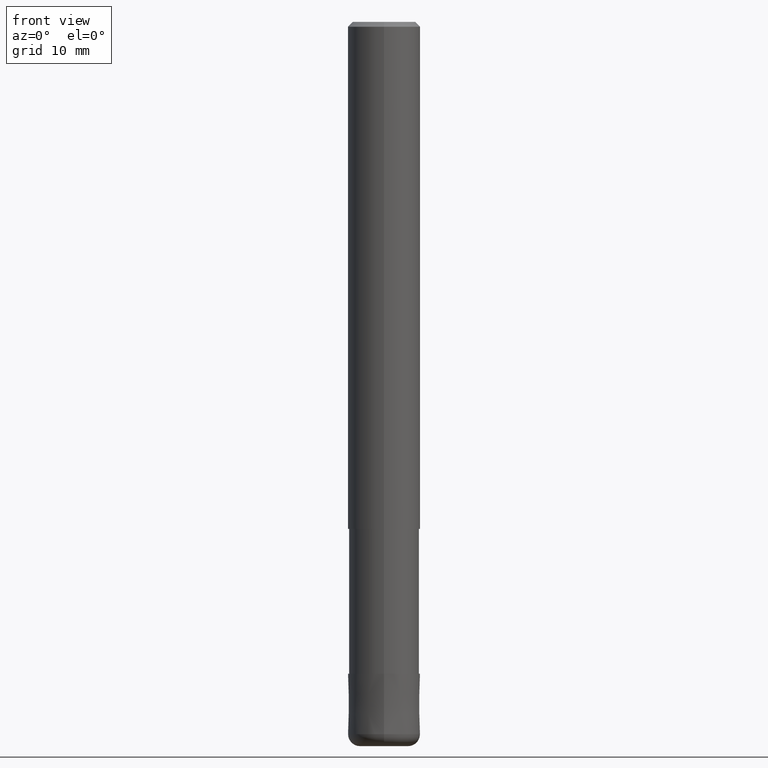
[diagram: clean part render]
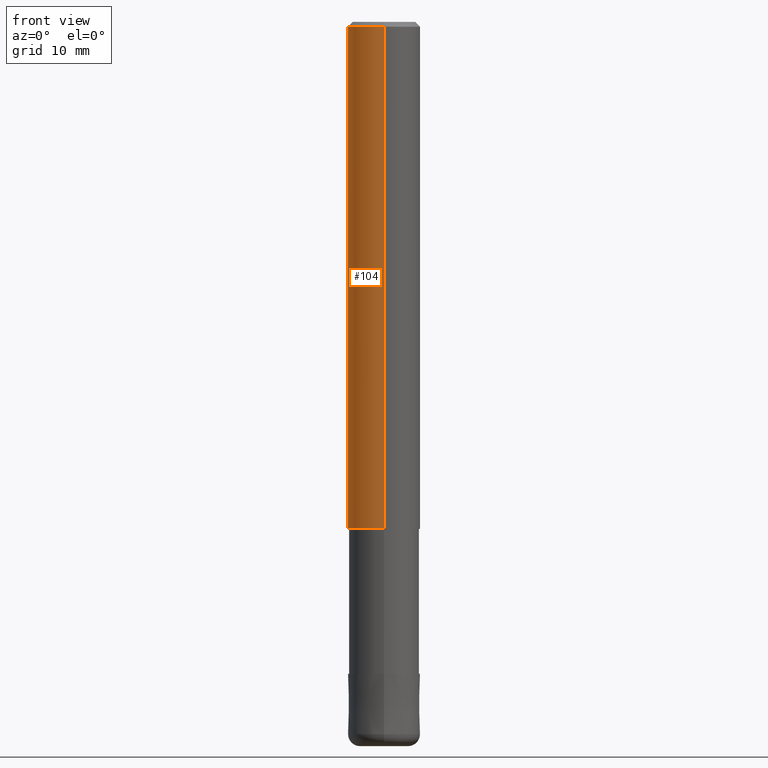
[diagram: same view with one face highlighted and labeled with its STEP entity id]
A machine part, front view. The second image highlights one B-rep face of the part: STEP entity #104.
In plain terms, the highlighted cylindrical surface (edge-blend (fillet) strip) has radius 3 mm, axis along (-0, -0, 1).
Its self-contained STEP definition (entity closure, byte-faithful):
#104=ADVANCED_FACE('',(#244),#245,.T.);
#106=EDGE_CURVE('',#140,#144,#247,.T.);
#116=EDGE_CURVE('',#186,#140,#259,.T.);
#128=VERTEX_POINT('',#272);
#136=EDGE_CURVE('',#186,#128,#280,.T.);
#140=VERTEX_POINT('',#284);
#144=VERTEX_POINT('',#288);
#168=EDGE_CURVE('',#144,#128,#318,.T.);
#186=VERTEX_POINT('',#337);
#244=FACE_OUTER_BOUND('',#391,.T.);
#245=CYLINDRICAL_SURFACE('',#392,3.0);
#247=CIRCLE('',#395,3.0);
#259=LINE('',#410,#411);
#272=CARTESIAN_POINT('',(0.0,3.0,-42.0));
#280=CIRCLE('',#438,3.0);
#284=CARTESIAN_POINT('',(3.67381906146713E-016,-3.0,-0.399999999999999));
#288=CARTESIAN_POINT('',(0.0,3.0,-0.399999999999999));
#318=LINE('',#479,#480);
#337=CARTESIAN_POINT('',(3.67381906146713E-016,-3.0,-42.0));
#391=EDGE_LOOP('',(#563,#564,#565,#566));
#392=AXIS2_PLACEMENT_3D('',#567,#568,#569);
#395=AXIS2_PLACEMENT_3D('',#570,#571,#572);
#410=CARTESIAN_POINT('',(3.67381906146713E-016,-3.0,-21.2));
#411=VECTOR('',#590,1.0);
#438=AXIS2_PLACEMENT_3D('',#609,#610,#611);
#479=CARTESIAN_POINT('',(-3.67381906146713E-016,3.0,-21.2));
#480=VECTOR('',#664,1.0);
#563=ORIENTED_EDGE('',*,*,#168,.T.);
#564=ORIENTED_EDGE('',*,*,#136,.F.);
#565=ORIENTED_EDGE('',*,*,#116,.T.);
#566=ORIENTED_EDGE('',*,*,#106,.T.);
#567=CARTESIAN_POINT('',(0.0,0.0,-21.2));
#568=DIRECTION('',(-0.0,-0.0,1.0));
#569=DIRECTION('',(0.0,1.0,0.0));
#570=CARTESIAN_POINT('',(0.0,0.0,-0.399999999999999));
#571=DIRECTION('',(0.0,0.0,-1.0));
#572=DIRECTION('',(0.0,1.0,0.0));
#590=DIRECTION('',(-0.0,-0.0,1.0));
#609=CARTESIAN_POINT('',(0.0,0.0,-42.0));
#610=DIRECTION('',(0.0,0.0,-1.0));
#611=DIRECTION('',(0.0,1.0,0.0));
#664=DIRECTION('',(0.0,0.0,-1.0));